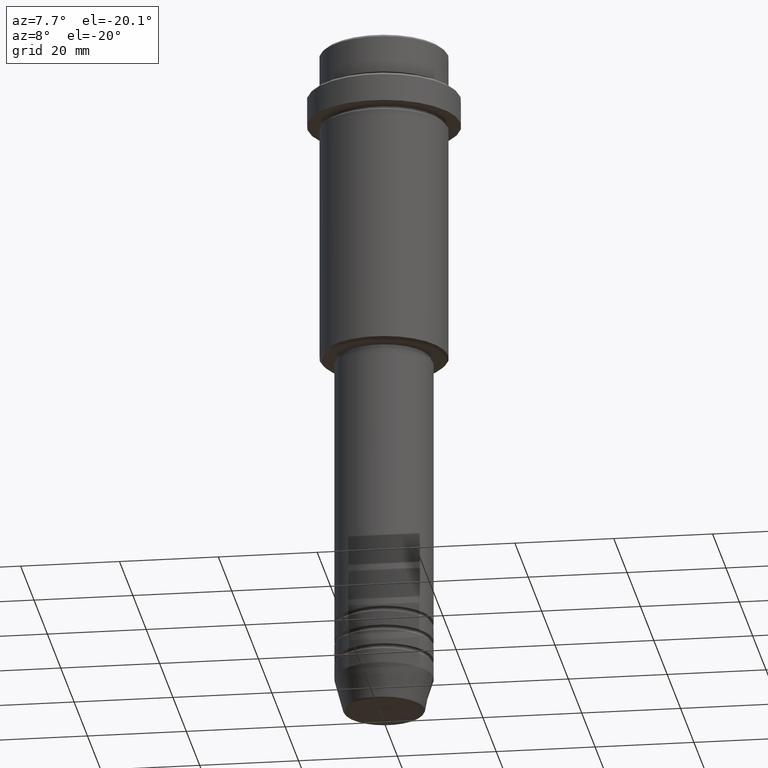
[diagram: clean part render]
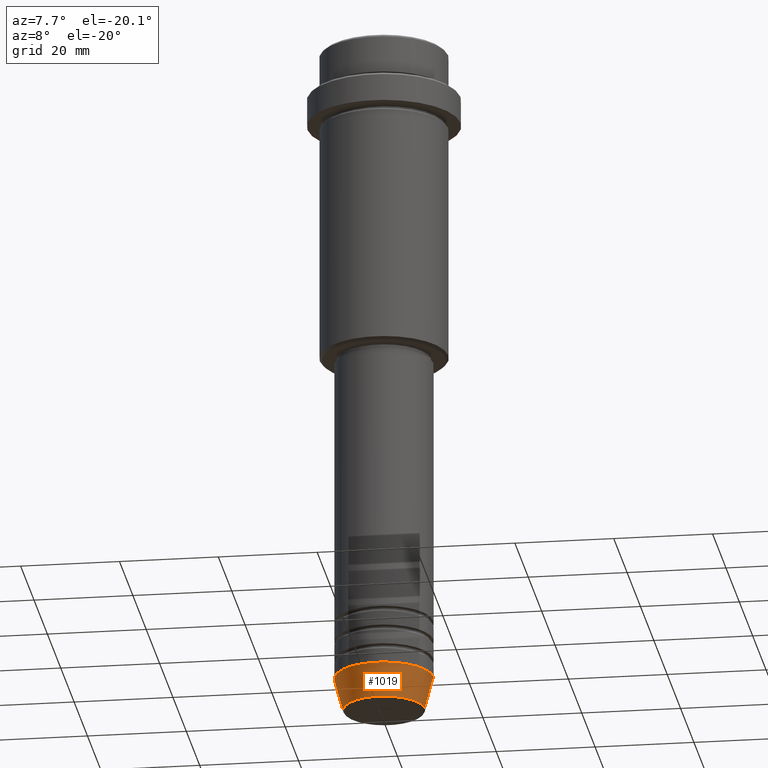
[diagram: same view with one face highlighted and labeled with its STEP entity id]
A machine part, auxiliary view. The second image highlights one B-rep face of the part: STEP entity #1019.
In plain terms, the highlighted conical surface has half-angle 15 deg.
Its self-contained STEP definition (entity closure, byte-faithful):
#132 = DIRECTION ( 'NONE',  ( 1.000000000000000000, 0.000000000000000000, 0.000000000000000000 ) ) ;
#142 = LINE ( 'NONE', #280, #788 ) ;
#145 = DIRECTION ( 'NONE',  ( -0.000000000000000000, -0.000000000000000000, 1.000000000000000000 ) ) ;
#166 = EDGE_CURVE ( 'NONE', #723, #1099, #1147, .T. ) ;
#273 = FACE_OUTER_BOUND ( 'NONE', #665, .T. ) ;
#280 = CARTESIAN_POINT ( 'NONE',  ( -10.00000000000000000, 1.224646799147353256E-15, -133.0000000000000000 ) ) ;
#282 = EDGE_CURVE ( 'NONE', #1099, #1107, #471, .T. ) ;
#317 = EDGE_CURVE ( 'NONE', #723, #1325, #142, .T. ) ;
#333 = DIRECTION ( 'NONE',  ( 0.2588190451025214611, 0.000000000000000000, 0.9659258262890679791 ) ) ;
#361 = ORIENTED_EDGE ( 'NONE', *, *, #923, .F. ) ;
#392 = DIRECTION ( 'NONE',  ( -0.000000000000000000, -0.000000000000000000, 1.000000000000000000 ) ) ;
#395 = AXIS2_PLACEMENT_3D ( 'NONE', #572, #145, #470 ) ;
#441 = CONICAL_SURFACE ( 'NONE', #926, 10.00000000000000000, 0.2617993877991502405 ) ;
#470 = DIRECTION ( 'NONE',  ( 1.000000000000000000, 0.000000000000000000, 0.000000000000000000 ) ) ;
#471 = LINE ( 'NONE', #1317, #648 ) ;
#572 = CARTESIAN_POINT ( 'NONE',  ( 0.000000000000000000, 0.000000000000000000, -139.6294095225512706 ) ) ;
#623 = DIRECTION ( 'NONE',  ( 1.000000000000000000, 0.000000000000000000, 0.000000000000000000 ) ) ;
#648 = VECTOR ( 'NONE', #333, 1000.000000000000114 ) ;
#665 = EDGE_LOOP ( 'NONE', ( #1206, #1041, #671, #361 ) ) ;
#671 = ORIENTED_EDGE ( 'NONE', *, *, #282, .T. ) ;
#723 = VERTEX_POINT ( 'NONE', #1189 ) ;
#788 = VECTOR ( 'NONE', #1143, 1000.000000000000114 ) ;
#856 = CIRCLE ( 'NONE', #1127, 10.00000000000000000 ) ;
#895 = DIRECTION ( 'NONE',  ( -0.000000000000000000, -0.000000000000000000, 1.000000000000000000 ) ) ;
#923 = EDGE_CURVE ( 'NONE', #1325, #1107, #856, .T. ) ;
#926 = AXIS2_PLACEMENT_3D ( 'NONE', #1028, #392, #623 ) ;
#960 = CARTESIAN_POINT ( 'NONE',  ( 10.00000000000000000, 0.000000000000000000, -133.0000000000000000 ) ) ;
#1019 = ADVANCED_FACE ( 'NONE', ( #273 ), #441, .T. ) ;
#1028 = CARTESIAN_POINT ( 'NONE',  ( 0.000000000000000000, 0.000000000000000000, -133.0000000000000000 ) ) ;
#1041 = ORIENTED_EDGE ( 'NONE', *, *, #166, .T. ) ;
#1099 = VERTEX_POINT ( 'NONE', #1401 ) ;
#1107 = VERTEX_POINT ( 'NONE', #960 ) ;
#1127 = AXIS2_PLACEMENT_3D ( 'NONE', #1345, #895, #132 ) ;
#1143 = DIRECTION ( 'NONE',  ( -0.2588190451025214611, 3.169619151431774186E-17, 0.9659258262890679791 ) ) ;
#1147 = CIRCLE ( 'NONE', #395, 8.223655072137189492 ) ;
#1189 = CARTESIAN_POINT ( 'NONE',  ( -8.223655072137189492, 1.115877042642911856E-15, -139.6294095225512706 ) ) ;
#1206 = ORIENTED_EDGE ( 'NONE', *, *, #317, .F. ) ;
#1317 = CARTESIAN_POINT ( 'NONE',  ( 10.00000000000000000, 0.000000000000000000, -133.0000000000000000 ) ) ;
#1325 = VERTEX_POINT ( 'NONE', #1335 ) ;
#1335 = CARTESIAN_POINT ( 'NONE',  ( -10.00000000000000000, 1.224646799147353256E-15, -133.0000000000000000 ) ) ;
#1345 = CARTESIAN_POINT ( 'NONE',  ( 0.000000000000000000, 0.000000000000000000, -133.0000000000000000 ) ) ;
#1401 = CARTESIAN_POINT ( 'NONE',  ( 8.223655072137189492, 0.000000000000000000, -139.6294095225512706 ) ) ;